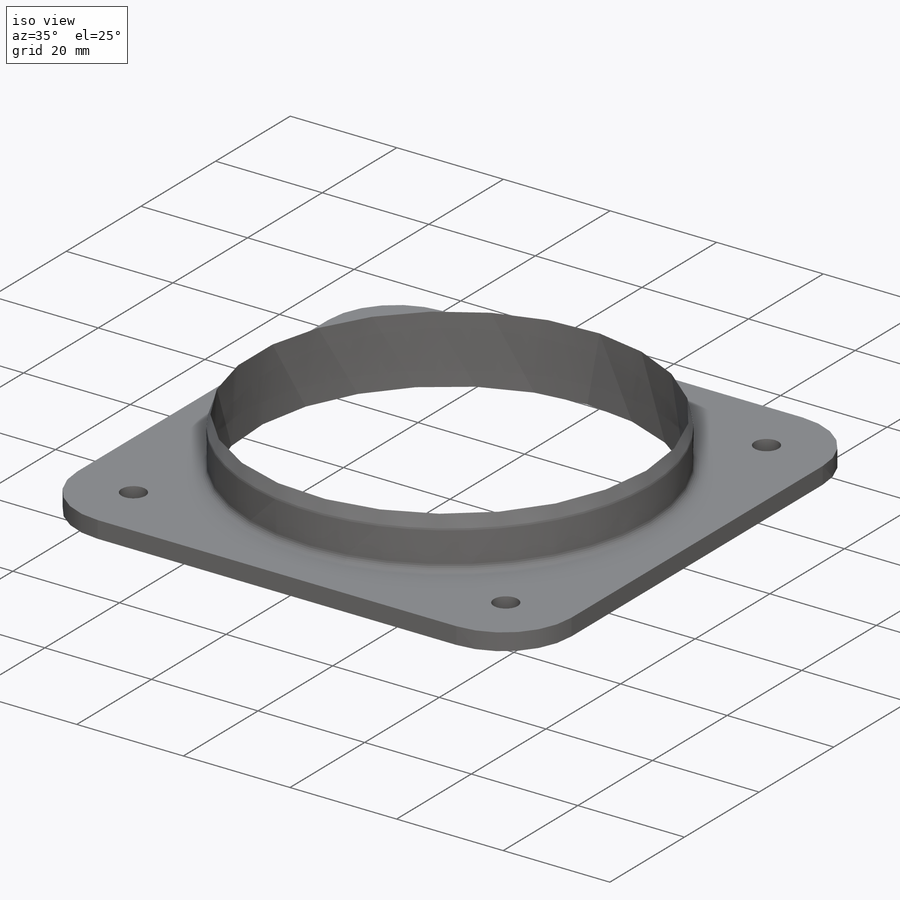
[diagram: iso view]
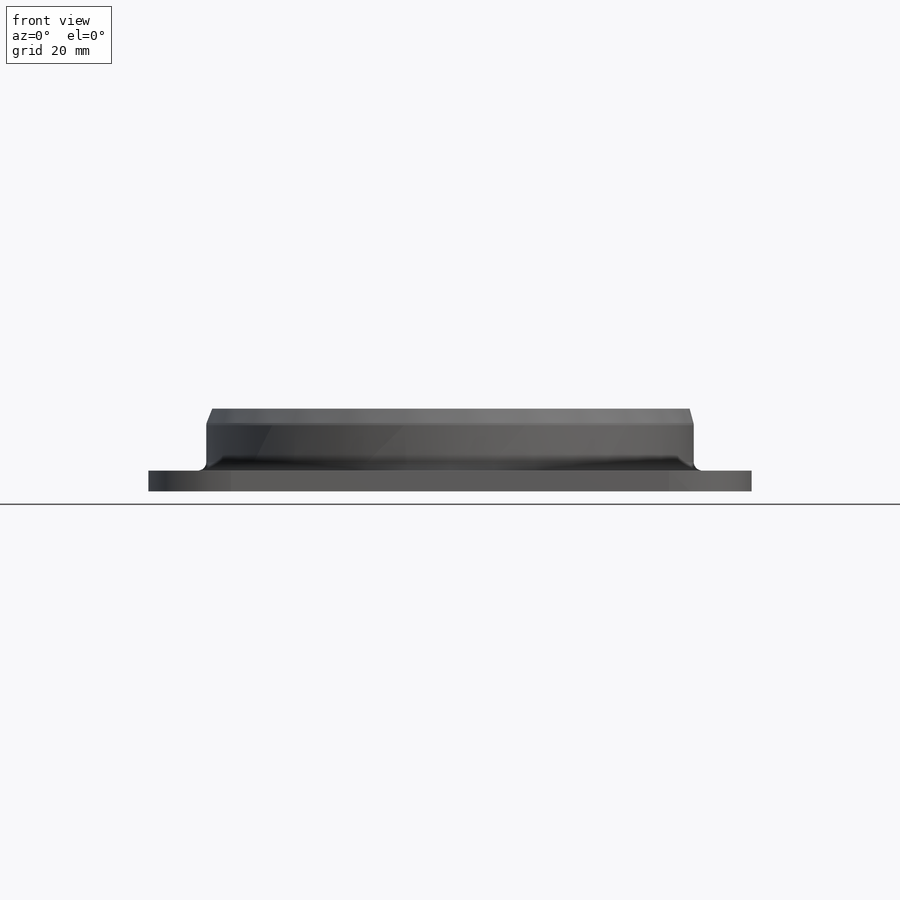
[diagram: front view]
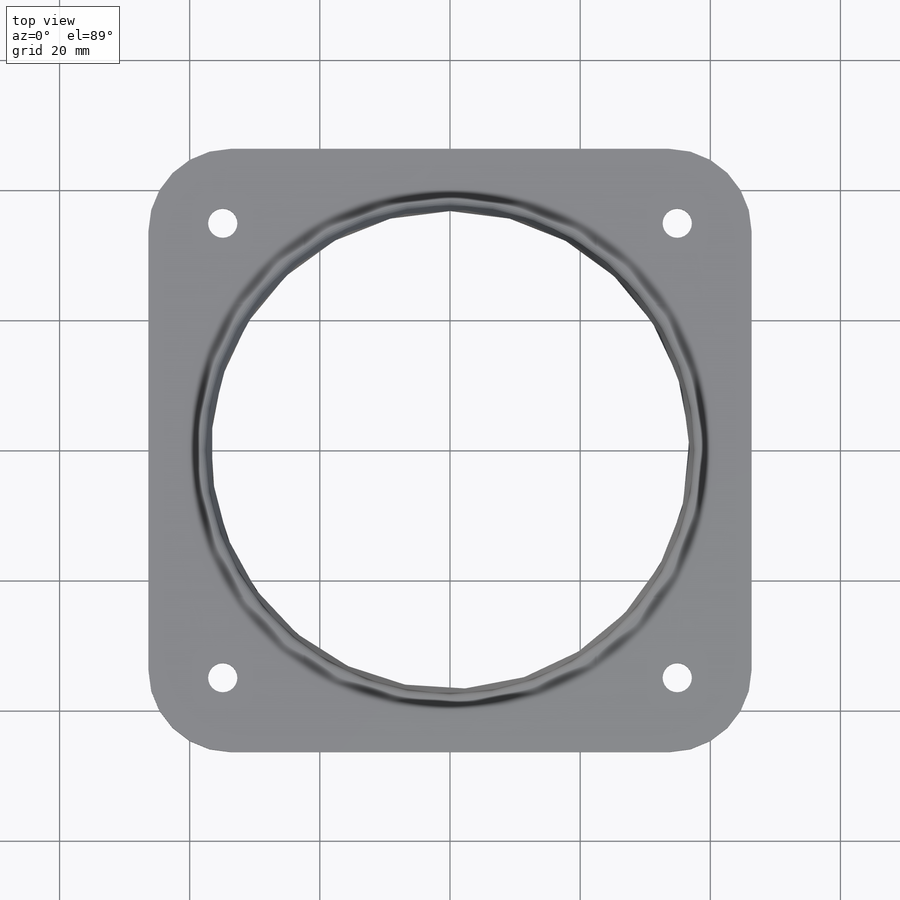
[diagram: top view]
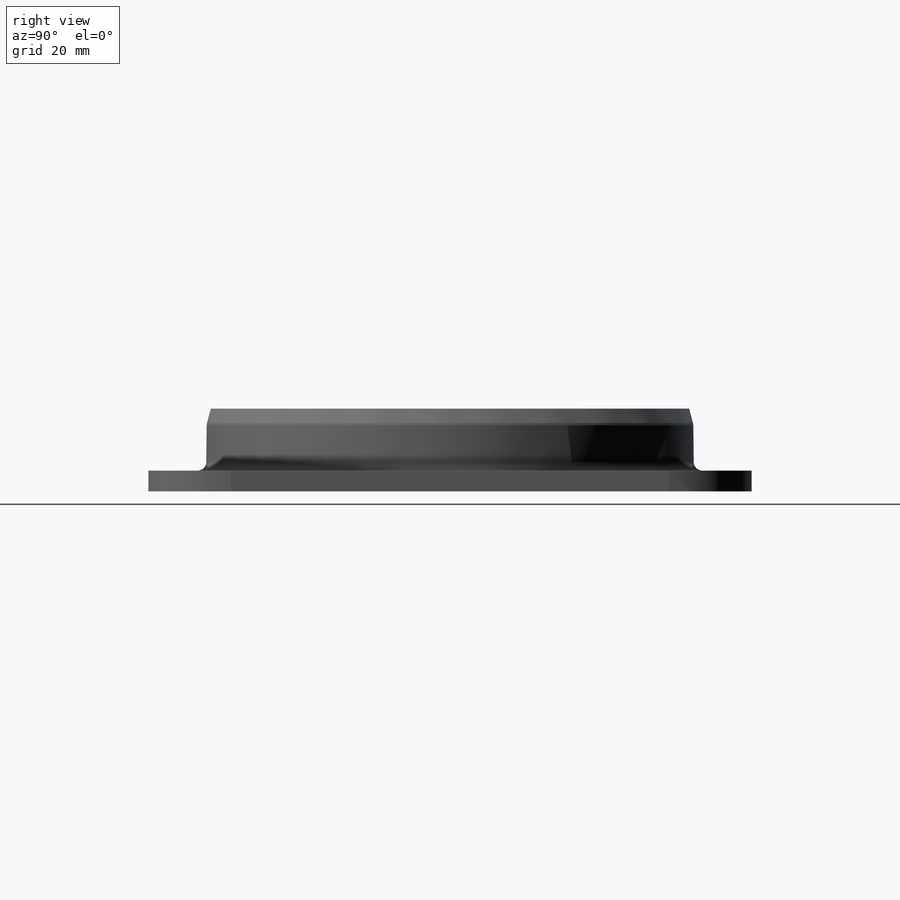
[diagram: right view]
SOLIDWORKS PART (.sldprt)
format: sldprt  version: not decoded by parser v0  size: 207,872 bytes
history: native  units: mm
features: sketch x3, fillet x2, material x1, extrude x1, cut_extrude x1, pattern_circular x1, revolve x1 (+13 scaffold rows collapsed)
feature tree (23):
  scaffold x13  (default folders/planes/origin — collapsed)
  material  "ABS"
  sketch  "Sketch1"  dims[D1=~79.088771mm D2=101.6mm D3=92.71mm]
  extrude  "Boss-Extrude1"  Depth=3.175mm
  sketch  "Sketch2"  dims[D2=4.5mm D1=69.85mm]
  cut_extrude  "Cut-Extrude1"  [1 undecoded]
  pattern_circular  "CirPattern1"  Count=4 Angle=90deg
  fillet  "Fillet1"  Radius=12.7mm
  sketch  "Sketch4"  dims[c1.D7=0.762mm c1.D1=6.35mm c1.D2=37.465mm c1.D3=1.5875mm c1.D4=~0.79375mm c1.D5=4.7625mm c1.D6=3.175mm c1.D8=0.0mm c1.D9=4.7625mm c2.D3=0.635mm c2.D4=1.5875mm c2.D1=12.7mm c2.D2=0.635mm c3.D3=~2.913816mm c4.D3=15.0deg]
  revolve  "Revolve1"  Angle=360deg
  fillet  "Fillet2"  Radius=1.27mm
decode coverage: 8 of 9 modeling features carry decoded parameters
note: ~ marks probable driven/reference dimensions
note: 1 parameter value undecoded
note: suppression state not decoded; provenance and decode notes live in map.json
